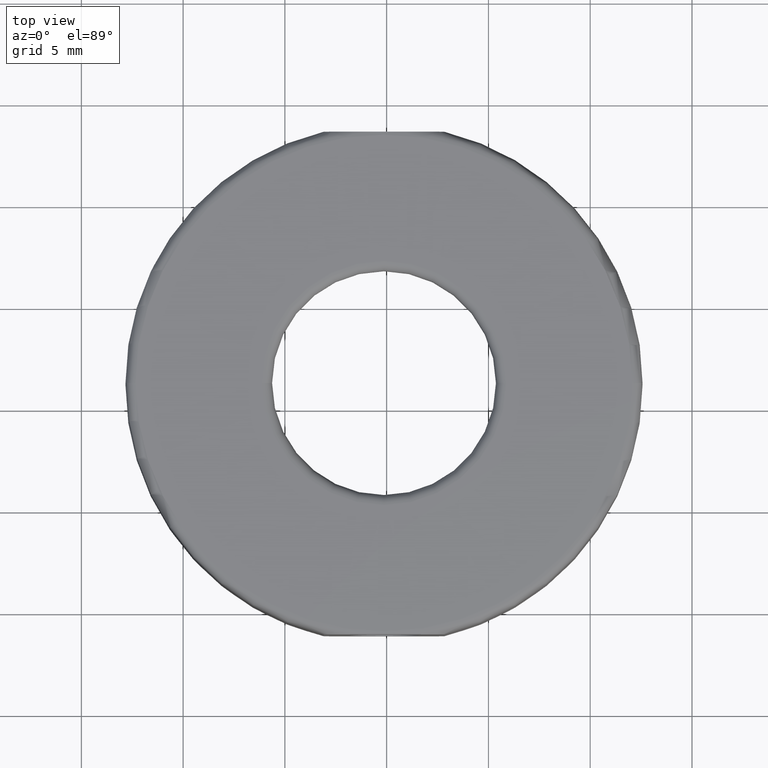
[diagram: clean part render]
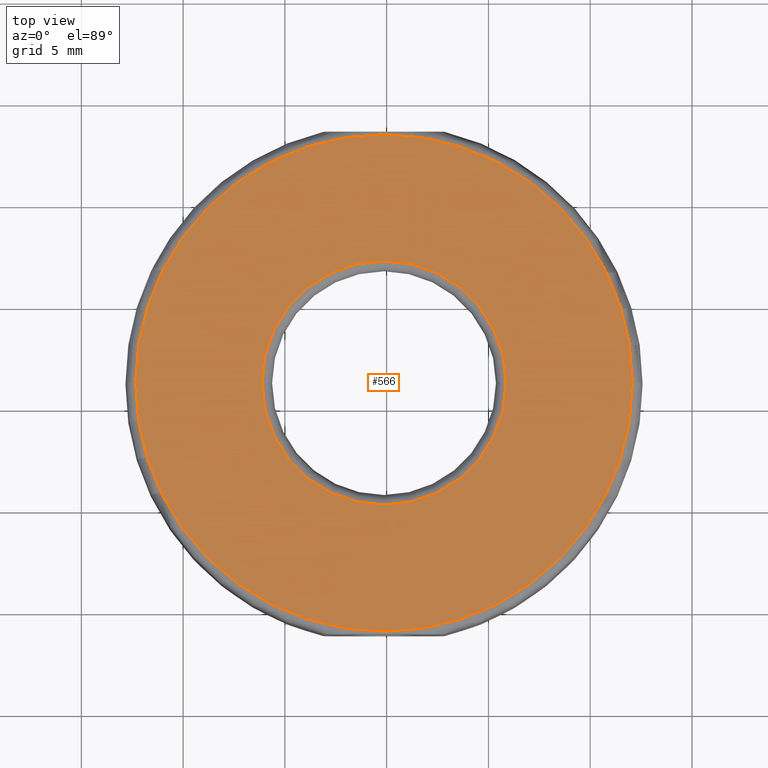
[diagram: same view with one face highlighted and labeled with its STEP entity id]
A machine part, top view. The second image highlights one B-rep face of the part: STEP entity #566.
In plain terms, the highlighted planar face has unit normal (-0, 0, 1).
Its self-contained STEP definition (entity closure, byte-faithful):
#6 = CIRCLE ( 'NONE', #358, 12.19999999999999900 ) ;
#72 = VERTEX_POINT ( 'NONE', #1039 ) ;
#84 = CIRCLE ( 'NONE', #1651, 6.000000000000000000 ) ;
#260 = DIRECTION ( 'NONE',  ( 1.000000000000000000, 0.0000000000000000000, 0.0000000000000000000 ) ) ;
#325 = DIRECTION ( 'NONE',  ( -0.0000000000000000000, 0.0000000000000000000, 1.000000000000000000 ) ) ;
#358 = AXIS2_PLACEMENT_3D ( 'NONE', #833, #1190, #657 ) ;
#437 = DIRECTION ( 'NONE',  ( -0.0000000000000000000, 0.0000000000000000000, 1.000000000000000000 ) ) ;
#461 = EDGE_CURVE ( 'NONE', #1035, #72, #1050, .T. ) ;
#566 = ADVANCED_FACE ( 'NONE', ( #609, #1801 ), #1828, .T. ) ;
#581 = CIRCLE ( 'NONE', #2317, 6.000000000000000000 ) ;
#609 = FACE_OUTER_BOUND ( 'NONE', #855, .T. ) ;
#657 = DIRECTION ( 'NONE',  ( 1.000000000000000000, 0.0000000000000000000, 0.0000000000000000000 ) ) ;
#680 = CARTESIAN_POINT ( 'NONE',  ( -12.33078238193866300, 1.275128223901954300, 2.999999999999997800 ) ) ;
#691 = AXIS2_PLACEMENT_3D ( 'NONE', #2373, #325, #2347 ) ;
#815 = CARTESIAN_POINT ( 'NONE',  ( -0.1307823819386641500, 1.275128223901953000, 2.999999999999997800 ) ) ;
#833 = CARTESIAN_POINT ( 'NONE',  ( -0.1307823819386641500, 1.275128223901953000, 2.999999999999997800 ) ) ;
#855 = EDGE_LOOP ( 'NONE', ( #1894, #1314 ) ) ;
#1035 = VERTEX_POINT ( 'NONE', #680 ) ;
#1039 = CARTESIAN_POINT ( 'NONE',  ( 12.06921761806133600, 1.275128223901953000, 2.999999999999997800 ) ) ;
#1050 = CIRCLE ( 'NONE', #1567, 12.19999999999999900 ) ;
#1110 = CARTESIAN_POINT ( 'NONE',  ( -0.1307823819386641500, 1.275128223901953000, 2.999999999999997800 ) ) ;
#1190 = DIRECTION ( 'NONE',  ( -0.0000000000000000000, 0.0000000000000000000, 1.000000000000000000 ) ) ;
#1248 = VERTEX_POINT ( 'NONE', #1690 ) ;
#1314 = ORIENTED_EDGE ( 'NONE', *, *, #461, .T. ) ;
#1462 = DIRECTION ( 'NONE',  ( 0.0000000000000000000, -0.0000000000000000000, -1.000000000000000000 ) ) ;
#1561 = CARTESIAN_POINT ( 'NONE',  ( -0.1307823819386641500, 1.275128223901953000, 2.999999999999997800 ) ) ;
#1567 = AXIS2_PLACEMENT_3D ( 'NONE', #815, #437, #260 ) ;
#1651 = AXIS2_PLACEMENT_3D ( 'NONE', #1561, #1721, #1730 ) ;
#1690 = CARTESIAN_POINT ( 'NONE',  ( -6.130782381938664600, 1.275128223901953500, 2.999999999999997300 ) ) ;
#1710 = EDGE_CURVE ( 'NONE', #1248, #2240, #581, .T. ) ;
#1721 = DIRECTION ( 'NONE',  ( 0.0000000000000000000, -0.0000000000000000000, -1.000000000000000000 ) ) ;
#1730 = DIRECTION ( 'NONE',  ( 1.000000000000000000, 0.0000000000000000000, 0.0000000000000000000 ) ) ;
#1754 = EDGE_LOOP ( 'NONE', ( #2244, #2375 ) ) ;
#1801 = FACE_BOUND ( 'NONE', #1754, .T. ) ;
#1828 = PLANE ( 'NONE',  #691 ) ;
#1884 = CARTESIAN_POINT ( 'NONE',  ( 5.869217618061336200, 1.275128223901953000, 2.999999999999997300 ) ) ;
#1894 = ORIENTED_EDGE ( 'NONE', *, *, #2059, .T. ) ;
#1906 = EDGE_CURVE ( 'NONE', #2240, #1248, #84, .T. ) ;
#2059 = EDGE_CURVE ( 'NONE', #72, #1035, #6, .T. ) ;
#2222 = DIRECTION ( 'NONE',  ( 1.000000000000000000, 0.0000000000000000000, 0.0000000000000000000 ) ) ;
#2240 = VERTEX_POINT ( 'NONE', #1884 ) ;
#2244 = ORIENTED_EDGE ( 'NONE', *, *, #1906, .T. ) ;
#2317 = AXIS2_PLACEMENT_3D ( 'NONE', #1110, #1462, #2222 ) ;
#2347 = DIRECTION ( 'NONE',  ( 1.000000000000000000, 0.0000000000000000000, 0.0000000000000000000 ) ) ;
#2373 = CARTESIAN_POINT ( 'NONE',  ( -0.1307823819386641500, 1.275128223901953000, 2.999999999999997800 ) ) ;
#2375 = ORIENTED_EDGE ( 'NONE', *, *, #1710, .T. ) ;